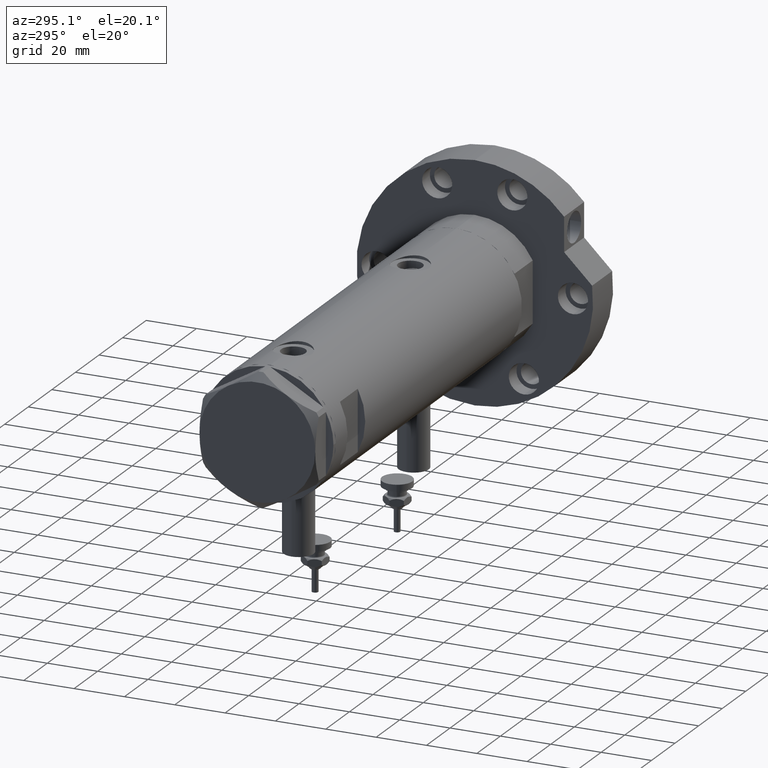
[diagram: clean part render]
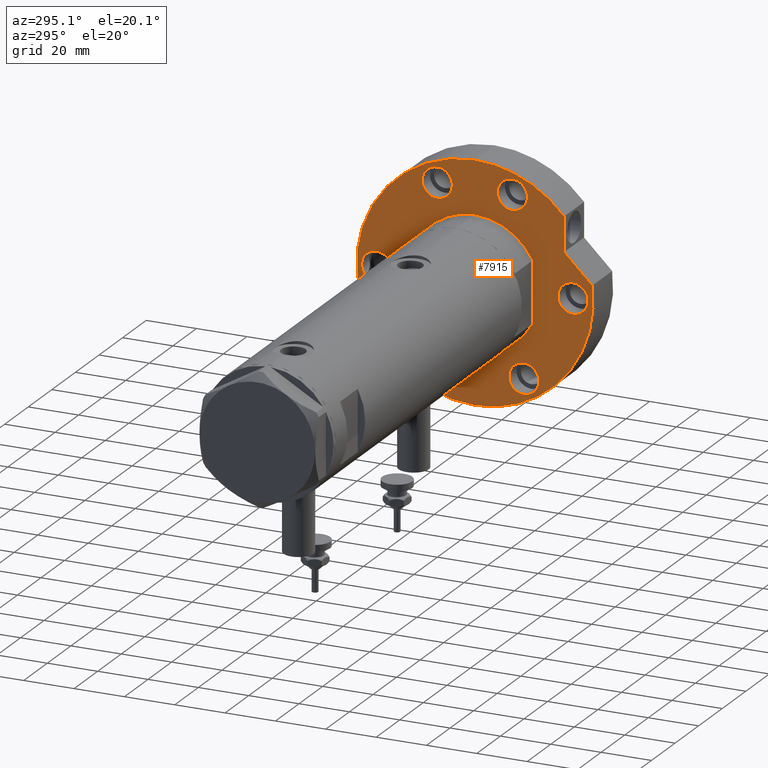
[diagram: same view with one face highlighted and labeled with its STEP entity id]
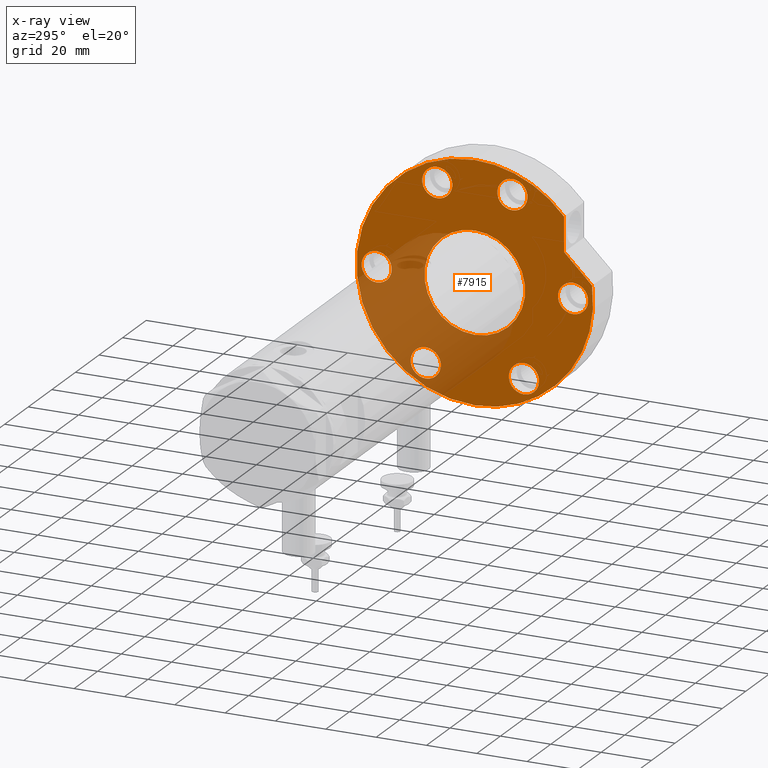
[diagram: x-ray of the same camera — body ghosted, the highlighted face saturated]
A machine part, auxiliary view. The second image highlights one B-rep face of the part: STEP entity #7915.
The next image is the same camera in x-ray: the body ghosted, the highlighted face saturated — about 30% of this face is hidden behind the body in this view.
In plain terms, the highlighted planar face has unit normal (1, 0, -0).
Its self-contained STEP definition (entity closure, byte-faithful):
#51 = DIRECTION ( 'NONE',  ( 1.000000000000000000, 0.000000000000000000, 0.000000000000000000 ) ) ;
#93 = CARTESIAN_POINT ( 'NONE',  ( 0.000000000000000000, -39.00000000000000000, 0.000000000000000000 ) ) ;
#127 = AXIS2_PLACEMENT_3D ( 'NONE', #7328, #643, #3077 ) ;
#206 = CIRCLE ( 'NONE', #5065, 46.99999999999999289 ) ;
#280 = DIRECTION ( 'NONE',  ( -1.000000000000000000, 0.000000000000000000, 0.000000000000000000 ) ) ;
#298 = CIRCLE ( 'NONE', #2440, 20.00000000000000000 ) ;
#350 = CARTESIAN_POINT ( 'NONE',  ( 6.092310621118299352, 46.60347359688769586, 0.000000000000000000 ) ) ;
#367 = AXIS2_PLACEMENT_3D ( 'NONE', #4149, #6709, #5434 ) ;
#445 = DIRECTION ( 'NONE',  ( 0.000000000000000000, 0.000000000000000000, -1.000000000000000000 ) ) ;
#456 = DIRECTION ( 'NONE',  ( -1.000000000000000000, 0.000000000000000000, 0.000000000000000000 ) ) ;
#476 = EDGE_CURVE ( 'NONE', #1322, #1993, #483, .T. ) ;
#483 = CIRCLE ( 'NONE', #6780, 5.999999999999998224 ) ;
#547 = DIRECTION ( 'NONE',  ( 1.000000000000000000, 0.000000000000000000, -0.000000000000000000 ) ) ;
#560 = DIRECTION ( 'NONE',  ( 1.000000000000000000, 0.000000000000000000, 0.000000000000000000 ) ) ;
#601 = EDGE_LOOP ( 'NONE', ( #3218, #2683 ) ) ;
#634 = VERTEX_POINT ( 'NONE', #7074 ) ;
#637 = FACE_BOUND ( 'NONE', #4084, .T. ) ;
#643 = DIRECTION ( 'NONE',  ( 0.000000000000000000, 0.000000000000000000, -1.000000000000000000 ) ) ;
#671 = CARTESIAN_POINT ( 'NONE',  ( -6.000000000000000888, 39.00000000000000000, 0.000000000000000000 ) ) ;
#687 = VERTEX_POINT ( 'NONE', #350 ) ;
#861 = AXIS2_PLACEMENT_3D ( 'NONE', #5531, #2388, #4873 ) ;
#876 = DIRECTION ( 'NONE',  ( 0.000000000000000000, 0.000000000000000000, -1.000000000000000000 ) ) ;
#887 = VERTEX_POINT ( 'NONE', #3886 ) ;
#963 = ORIENTED_EDGE ( 'NONE', *, *, #2501, .F. ) ;
#1059 = CARTESIAN_POINT ( 'NONE',  ( 30.83217135699462830, 35.47361286101148892, 0.000000000000000000 ) ) ;
#1062 = EDGE_CURVE ( 'NONE', #887, #1396, #4583, .T. ) ;
#1073 = ORIENTED_EDGE ( 'NONE', *, *, #2122, .T. ) ;
#1089 = AXIS2_PLACEMENT_3D ( 'NONE', #6200, #5552, #547 ) ;
#1104 = DIRECTION ( 'NONE',  ( 0.000000000000000000, 0.000000000000000000, -1.000000000000000000 ) ) ;
#1146 = FACE_BOUND ( 'NONE', #3665, .T. ) ;
#1155 = DIRECTION ( 'NONE',  ( 0.000000000000000000, 0.000000000000000000, 1.000000000000000000 ) ) ;
#1185 = AXIS2_PLACEMENT_3D ( 'NONE', #6561, #1104, #2819 ) ;
#1189 = EDGE_LOOP ( 'NONE', ( #4197, #1073, #6306, #5345, #7437 ) ) ;
#1322 = VERTEX_POINT ( 'NONE', #6521 ) ;
#1368 = CARTESIAN_POINT ( 'NONE',  ( 42.03130176794011419, 14.92465386223865842, 0.000000000000000000 ) ) ;
#1396 = VERTEX_POINT ( 'NONE', #7076 ) ;
#1458 = CARTESIAN_POINT ( 'NONE',  ( 36.03130176794011419, -14.92465386223865842, 0.000000000000000000 ) ) ;
#1518 = EDGE_CURVE ( 'NONE', #1396, #887, #4206, .T. ) ;
#1730 = ORIENTED_EDGE ( 'NONE', *, *, #476, .F. ) ;
#1762 = DIRECTION ( 'NONE',  ( -1.000000000000000000, 0.000000000000000000, 0.000000000000000000 ) ) ;
#1826 = CIRCLE ( 'NONE', #6359, 6.000000000000000888 ) ;
#1827 = ORIENTED_EDGE ( 'NONE', *, *, #1518, .F. ) ;
#1865 = DIRECTION ( 'NONE',  ( -1.000000000000000000, 0.000000000000000000, 0.000000000000000000 ) ) ;
#1916 = EDGE_CURVE ( 'NONE', #2523, #3168, #5522, .T. ) ;
#1964 = EDGE_CURVE ( 'NONE', #5241, #4749, #6273, .T. ) ;
#1993 = VERTEX_POINT ( 'NONE', #4388 ) ;
#2005 = CARTESIAN_POINT ( 'NONE',  ( 17.22217135699461110, 35.47361286101150313, 0.000000000000000000 ) ) ;
#2096 = CARTESIAN_POINT ( 'NONE',  ( 46.99999999999999289, 5.755839955992559063E-15, 0.000000000000000000 ) ) ;
#2115 = AXIS2_PLACEMENT_3D ( 'NONE', #6242, #3194, #4398 ) ;
#2122 = EDGE_CURVE ( 'NONE', #3984, #5324, #2434, .T. ) ;
#2131 = DIRECTION ( 'NONE',  ( 0.000000000000000000, 0.000000000000000000, 1.000000000000000000 ) ) ;
#2165 = CARTESIAN_POINT ( 'NONE',  ( -46.99999999999999289, 0.000000000000000000, 0.000000000000000000 ) ) ;
#2187 = VERTEX_POINT ( 'NONE', #1368 ) ;
#2265 = CARTESIAN_POINT ( 'NONE',  ( 0.000000000000000000, -39.00000000000000000, 0.000000000000000000 ) ) ;
#2348 = CARTESIAN_POINT ( 'NONE',  ( 0.000000000000000000, 0.000000000000000000, 0.000000000000000000 ) ) ;
#2378 = DIRECTION ( 'NONE',  ( -1.000000000000000000, 0.000000000000000000, 0.000000000000000000 ) ) ;
#2386 = AXIS2_PLACEMENT_3D ( 'NONE', #5605, #3162, #51 ) ;
#2388 = DIRECTION ( 'NONE',  ( 0.000000000000000000, 0.000000000000000000, -1.000000000000000000 ) ) ;
#2434 = LINE ( 'NONE', #2005, #2628 ) ;
#2440 = AXIS2_PLACEMENT_3D ( 'NONE', #7684, #2131, #3871 ) ;
#2501 = EDGE_CURVE ( 'NONE', #2187, #6943, #2912, .T. ) ;
#2523 = VERTEX_POINT ( 'NONE', #5712 ) ;
#2569 = CARTESIAN_POINT ( 'NONE',  ( 30.03130176794011774, 14.92465386223865842, 0.000000000000000000 ) ) ;
#2628 = VECTOR ( 'NONE', #4354, 1000.000000000000000 ) ;
#2662 = EDGE_CURVE ( 'NONE', #6886, #7162, #6787, .T. ) ;
#2683 = ORIENTED_EDGE ( 'NONE', *, *, #3925, .F. ) ;
#2787 = ORIENTED_EDGE ( 'NONE', *, *, #1062, .F. ) ;
#2795 = EDGE_CURVE ( 'NONE', #634, #5224, #3683, .T. ) ;
#2808 = EDGE_LOOP ( 'NONE', ( #7193, #3048 ) ) ;
#2818 = EDGE_CURVE ( 'NONE', #687, #5241, #7445, .T. ) ;
#2819 = DIRECTION ( 'NONE',  ( -1.000000000000000000, 0.000000000000000000, 0.000000000000000000 ) ) ;
#2912 = CIRCLE ( 'NONE', #2115, 5.999999999999998224 ) ;
#3009 = EDGE_CURVE ( 'NONE', #6943, #2187, #4581, .T. ) ;
#3048 = ORIENTED_EDGE ( 'NONE', *, *, #2795, .F. ) ;
#3072 = FACE_BOUND ( 'NONE', #6763, .T. ) ;
#3077 = DIRECTION ( 'NONE',  ( -1.000000000000000000, 0.000000000000000000, 0.000000000000000000 ) ) ;
#3162 = DIRECTION ( 'NONE',  ( 0.000000000000000000, 0.000000000000000000, 1.000000000000000000 ) ) ;
#3168 = VERTEX_POINT ( 'NONE', #6166 ) ;
#3194 = DIRECTION ( 'NONE',  ( 0.000000000000000000, 0.000000000000000000, -1.000000000000000000 ) ) ;
#3218 = ORIENTED_EDGE ( 'NONE', *, *, #6340, .F. ) ;
#3261 = CIRCLE ( 'NONE', #3770, 5.999999999999998224 ) ;
#3300 = AXIS2_PLACEMENT_3D ( 'NONE', #4236, #5439, #2378 ) ;
#3324 = ORIENTED_EDGE ( 'NONE', *, *, #3009, .F. ) ;
#3365 = DIRECTION ( 'NONE',  ( 0.000000000000000000, 0.000000000000000000, -1.000000000000000000 ) ) ;
#3594 = FACE_BOUND ( 'NONE', #2808, .T. ) ;
#3623 = DIRECTION ( 'NONE',  ( 1.000000000000000000, 0.000000000000000000, 0.000000000000000000 ) ) ;
#3629 = FACE_OUTER_BOUND ( 'NONE', #1189, .T. ) ;
#3665 = EDGE_LOOP ( 'NONE', ( #1730, #6690 ) ) ;
#3683 = CIRCLE ( 'NONE', #7172, 6.000000000000000000 ) ;
#3697 = DIRECTION ( 'NONE',  ( 0.000000000000000000, 0.000000000000000000, -1.000000000000000000 ) ) ;
#3711 = FACE_BOUND ( 'NONE', #601, .T. ) ;
#3770 = AXIS2_PLACEMENT_3D ( 'NONE', #6664, #3697, #6067 ) ;
#3871 = DIRECTION ( 'NONE',  ( 1.000000000000000000, 0.000000000000000000, 0.000000000000000000 ) ) ;
#3886 = CARTESIAN_POINT ( 'NONE',  ( -39.77499074759302289, -19.50000000000015277, 0.000000000000000000 ) ) ;
#3925 = EDGE_CURVE ( 'NONE', #6154, #7924, #6296, .T. ) ;
#3955 = CARTESIAN_POINT ( 'NONE',  ( -6.000000000000000000, -39.00000000000000000, 0.000000000000000000 ) ) ;
#3984 = VERTEX_POINT ( 'NONE', #6812 ) ;
#4084 = EDGE_LOOP ( 'NONE', ( #3324, #963 ) ) ;
#4112 = DIRECTION ( 'NONE',  ( 0.000000000000000000, 0.000000000000000000, 1.000000000000000000 ) ) ;
#4131 = CARTESIAN_POINT ( 'NONE',  ( -33.77499074759315079, 19.49999999999992539, 0.000000000000000000 ) ) ;
#4149 = CARTESIAN_POINT ( 'NONE',  ( 0.000000000000000000, 0.000000000000000000, 0.000000000000000000 ) ) ;
#4163 = CIRCLE ( 'NONE', #7926, 6.000000000000000000 ) ;
#4197 = ORIENTED_EDGE ( 'NONE', *, *, #5511, .T. ) ;
#4206 = CIRCLE ( 'NONE', #127, 6.000000000000005329 ) ;
#4236 = CARTESIAN_POINT ( 'NONE',  ( 36.03130176794011419, 14.92465386223865842, 0.000000000000000000 ) ) ;
#4313 = DIRECTION ( 'NONE',  ( 0.7071067811865511255, -0.7071067811865440200, -0.000000000000000000 ) ) ;
#4316 = FACE_BOUND ( 'NONE', #5650, .T. ) ;
#4354 = DIRECTION ( 'NONE',  ( 1.000000000000000000, -1.019675812477181606E-15, 0.000000000000000000 ) ) ;
#4357 = EDGE_CURVE ( 'NONE', #4749, #5324, #206, .T. ) ;
#4388 = CARTESIAN_POINT ( 'NONE',  ( 42.03130176794011419, -14.92465386223865842, 0.000000000000000000 ) ) ;
#4398 = DIRECTION ( 'NONE',  ( -1.000000000000000000, 0.000000000000000000, 0.000000000000000000 ) ) ;
#4428 = ORIENTED_EDGE ( 'NONE', *, *, #5295, .F. ) ;
#4538 = ORIENTED_EDGE ( 'NONE', *, *, #1916, .T. ) ;
#4581 = CIRCLE ( 'NONE', #3300, 5.999999999999998224 ) ;
#4583 = CIRCLE ( 'NONE', #861, 6.000000000000005329 ) ;
#4743 = DIRECTION ( 'NONE',  ( -1.000000000000000000, 0.000000000000000000, 0.000000000000000000 ) ) ;
#4749 = VERTEX_POINT ( 'NONE', #2096 ) ;
#4788 = CARTESIAN_POINT ( 'NONE',  ( 0.000000000000000000, 39.00000000000000000, 0.000000000000000000 ) ) ;
#4873 = DIRECTION ( 'NONE',  ( -1.000000000000000000, 0.000000000000000000, 0.000000000000000000 ) ) ;
#5065 = AXIS2_PLACEMENT_3D ( 'NONE', #2348, #1155, #560 ) ;
#5108 = EDGE_CURVE ( 'NONE', #3168, #2523, #298, .T. ) ;
#5123 = AXIS2_PLACEMENT_3D ( 'NONE', #7301, #5459, #1762 ) ;
#5224 = VERTEX_POINT ( 'NONE', #3955 ) ;
#5238 = DIRECTION ( 'NONE',  ( -1.000000000000000000, 0.000000000000000000, 0.000000000000000000 ) ) ;
#5241 = VERTEX_POINT ( 'NONE', #2165 ) ;
#5295 = EDGE_CURVE ( 'NONE', #7162, #6886, #7238, .T. ) ;
#5324 = VERTEX_POINT ( 'NONE', #1059 ) ;
#5345 = ORIENTED_EDGE ( 'NONE', *, *, #1964, .F. ) ;
#5434 = DIRECTION ( 'NONE',  ( 1.000000000000000000, 0.000000000000000000, 0.000000000000000000 ) ) ;
#5439 = DIRECTION ( 'NONE',  ( 0.000000000000000000, 0.000000000000000000, -1.000000000000000000 ) ) ;
#5459 = DIRECTION ( 'NONE',  ( 0.000000000000000000, 0.000000000000000000, -1.000000000000000000 ) ) ;
#5511 = EDGE_CURVE ( 'NONE', #687, #3984, #6158, .T. ) ;
#5522 = CIRCLE ( 'NONE', #367, 20.00000000000000000 ) ;
#5531 = CARTESIAN_POINT ( 'NONE',  ( -33.77499074759302289, -19.50000000000015277, 0.000000000000000000 ) ) ;
#5552 = DIRECTION ( 'NONE',  ( 0.000000000000000000, 0.000000000000000000, 1.000000000000000000 ) ) ;
#5605 = CARTESIAN_POINT ( 'NONE',  ( 0.000000000000000000, 0.000000000000000000, 0.000000000000000000 ) ) ;
#5630 = CARTESIAN_POINT ( 'NONE',  ( 17.22217135699461110, 35.47361286101150313, 0.000000000000000000 ) ) ;
#5650 = EDGE_LOOP ( 'NONE', ( #5771, #4428 ) ) ;
#5712 = CARTESIAN_POINT ( 'NONE',  ( -20.00000000000000000, 2.449293598294706513E-15, 0.000000000000000000 ) ) ;
#5771 = ORIENTED_EDGE ( 'NONE', *, *, #2662, .F. ) ;
#5966 = VECTOR ( 'NONE', #4313, 999.9999999999998863 ) ;
#6067 = DIRECTION ( 'NONE',  ( -1.000000000000000000, 0.000000000000000000, 0.000000000000000000 ) ) ;
#6076 = FACE_BOUND ( 'NONE', #6751, .T. ) ;
#6154 = VERTEX_POINT ( 'NONE', #6334 ) ;
#6158 = LINE ( 'NONE', #5630, #5966 ) ;
#6166 = CARTESIAN_POINT ( 'NONE',  ( 20.00000000000000000, 0.000000000000000000, 0.000000000000000000 ) ) ;
#6200 = CARTESIAN_POINT ( 'NONE',  ( 0.000000000000000000, 0.000000000000000000, 0.000000000000000000 ) ) ;
#6242 = CARTESIAN_POINT ( 'NONE',  ( 36.03130176794011419, 14.92465386223865842, 0.000000000000000000 ) ) ;
#6273 = CIRCLE ( 'NONE', #6777, 46.99999999999999289 ) ;
#6296 = CIRCLE ( 'NONE', #5123, 6.000000000000000888 ) ;
#6306 = ORIENTED_EDGE ( 'NONE', *, *, #4357, .F. ) ;
#6334 = CARTESIAN_POINT ( 'NONE',  ( 6.000000000000000888, 39.00000000000000000, 0.000000000000000000 ) ) ;
#6340 = EDGE_CURVE ( 'NONE', #7924, #6154, #1826, .T. ) ;
#6359 = AXIS2_PLACEMENT_3D ( 'NONE', #4788, #3365, #5238 ) ;
#6521 = CARTESIAN_POINT ( 'NONE',  ( 30.03130176794011774, -14.92465386223865842, 0.000000000000000000 ) ) ;
#6561 = CARTESIAN_POINT ( 'NONE',  ( -33.77499074759315079, 19.49999999999992539, 0.000000000000000000 ) ) ;
#6664 = CARTESIAN_POINT ( 'NONE',  ( 36.03130176794011419, -14.92465386223865842, 0.000000000000000000 ) ) ;
#6690 = ORIENTED_EDGE ( 'NONE', *, *, #7056, .F. ) ;
#6709 = DIRECTION ( 'NONE',  ( 0.000000000000000000, 0.000000000000000000, 1.000000000000000000 ) ) ;
#6751 = EDGE_LOOP ( 'NONE', ( #7932, #4538 ) ) ;
#6763 = EDGE_LOOP ( 'NONE', ( #2787, #1827 ) ) ;
#6777 = AXIS2_PLACEMENT_3D ( 'NONE', #7885, #4112, #3623 ) ;
#6780 = AXIS2_PLACEMENT_3D ( 'NONE', #1458, #876, #280 ) ;
#6787 = CIRCLE ( 'NONE', #7427, 5.999999999999998224 ) ;
#6806 = DIRECTION ( 'NONE',  ( 0.000000000000000000, 0.000000000000000000, -1.000000000000000000 ) ) ;
#6812 = CARTESIAN_POINT ( 'NONE',  ( 17.22217135699460755, 35.47361286101150313, 0.000000000000000000 ) ) ;
#6886 = VERTEX_POINT ( 'NONE', #7524 ) ;
#6943 = VERTEX_POINT ( 'NONE', #2569 ) ;
#7056 = EDGE_CURVE ( 'NONE', #1993, #1322, #3261, .T. ) ;
#7074 = CARTESIAN_POINT ( 'NONE',  ( 6.000000000000000000, -39.00000000000000000, 0.000000000000000000 ) ) ;
#7076 = CARTESIAN_POINT ( 'NONE',  ( -27.77499074759301578, -19.50000000000015277, 0.000000000000000000 ) ) ;
#7162 = VERTEX_POINT ( 'NONE', #7431 ) ;
#7172 = AXIS2_PLACEMENT_3D ( 'NONE', #93, #6806, #1865 ) ;
#7193 = ORIENTED_EDGE ( 'NONE', *, *, #7410, .F. ) ;
#7238 = CIRCLE ( 'NONE', #1185, 5.999999999999998224 ) ;
#7301 = CARTESIAN_POINT ( 'NONE',  ( 0.000000000000000000, 39.00000000000000000, 0.000000000000000000 ) ) ;
#7328 = CARTESIAN_POINT ( 'NONE',  ( -33.77499074759302289, -19.50000000000015277, 0.000000000000000000 ) ) ;
#7410 = EDGE_CURVE ( 'NONE', #5224, #634, #4163, .T. ) ;
#7427 = AXIS2_PLACEMENT_3D ( 'NONE', #4131, #7707, #456 ) ;
#7431 = CARTESIAN_POINT ( 'NONE',  ( -27.77499074759315434, 19.49999999999992539, 0.000000000000000000 ) ) ;
#7437 = ORIENTED_EDGE ( 'NONE', *, *, #2818, .F. ) ;
#7445 = CIRCLE ( 'NONE', #2386, 46.99999999999999289 ) ;
#7483 = PLANE ( 'NONE',  #1089 ) ;
#7524 = CARTESIAN_POINT ( 'NONE',  ( -39.77499074759315079, 19.49999999999992539, 0.000000000000000000 ) ) ;
#7684 = CARTESIAN_POINT ( 'NONE',  ( 0.000000000000000000, 0.000000000000000000, 0.000000000000000000 ) ) ;
#7707 = DIRECTION ( 'NONE',  ( 0.000000000000000000, 0.000000000000000000, -1.000000000000000000 ) ) ;
#7885 = CARTESIAN_POINT ( 'NONE',  ( 0.000000000000000000, 0.000000000000000000, 0.000000000000000000 ) ) ;
#7915 = ADVANCED_FACE ( 'NONE', ( #3711, #637, #1146, #3594, #3072, #4316, #6076, #3629 ), #7483, .F. ) ;
#7924 = VERTEX_POINT ( 'NONE', #671 ) ;
#7926 = AXIS2_PLACEMENT_3D ( 'NONE', #2265, #445, #4743 ) ;
#7932 = ORIENTED_EDGE ( 'NONE', *, *, #5108, .T. ) ;